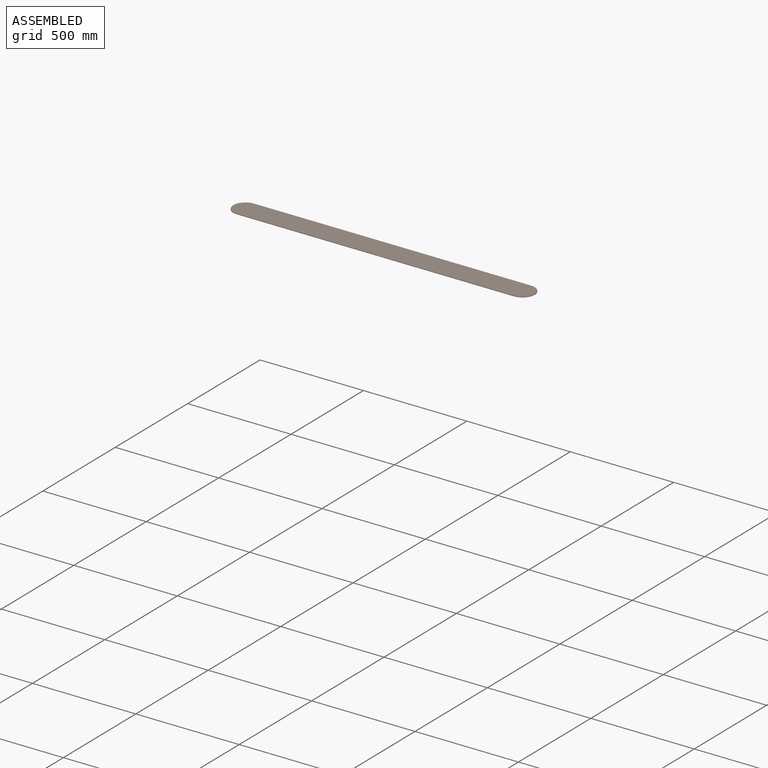
[diagram: assembled view]
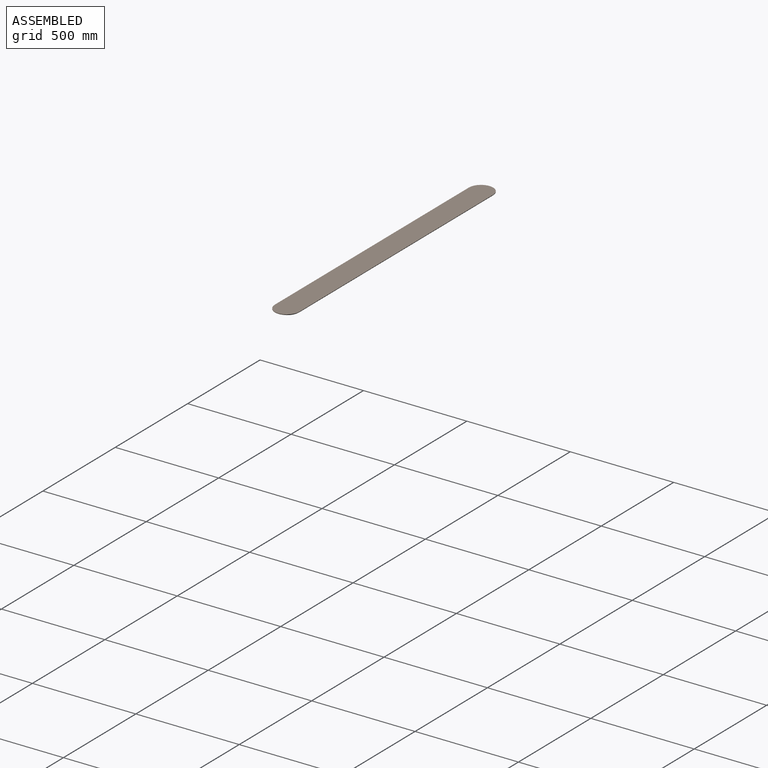
[diagram: assembled view, second angle]
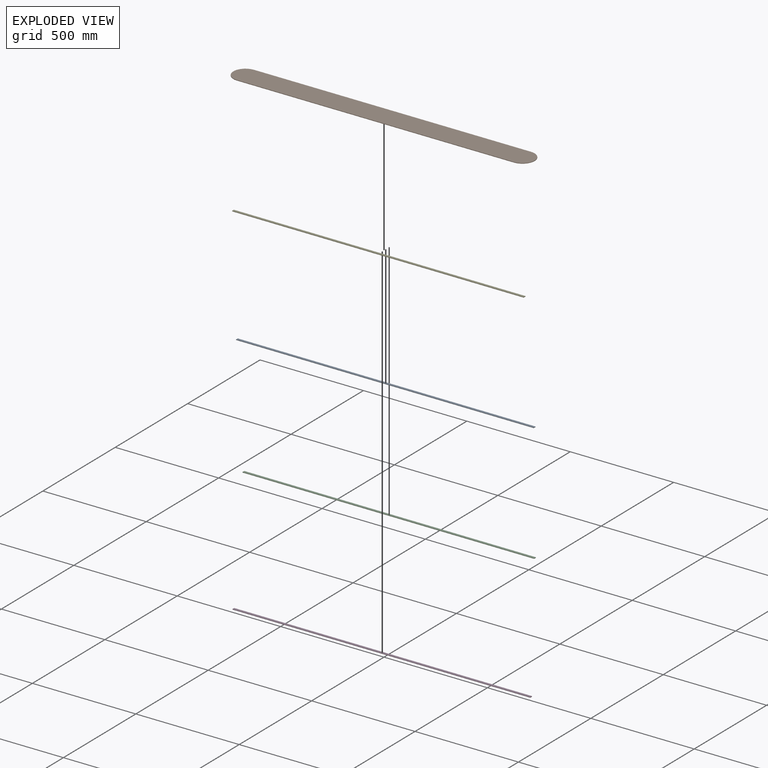
[diagram: exploded view]
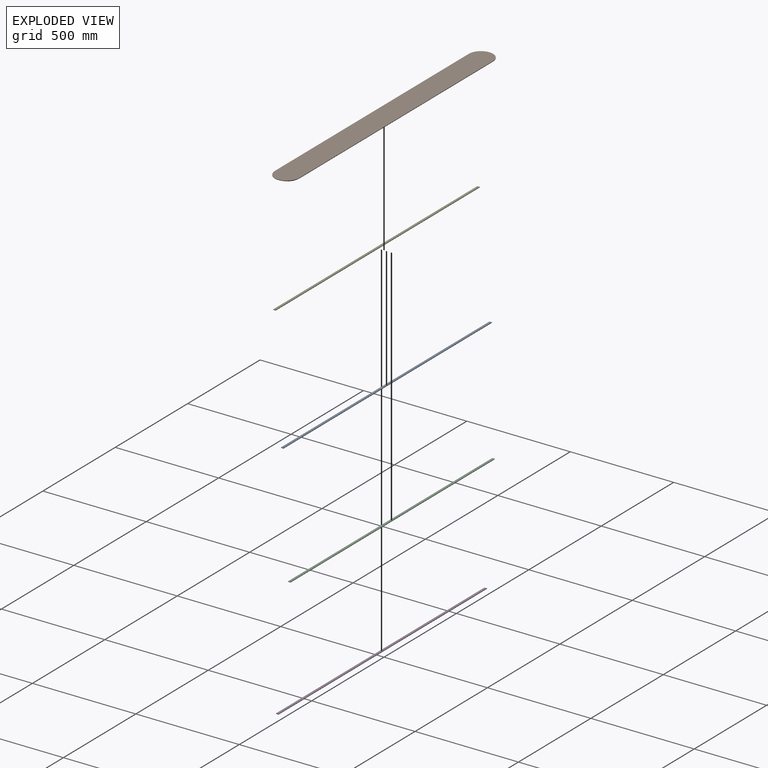
[diagram: exploded view, second angle]
ASSEMBLY  parts=5 mates=4
PART A: 6 faces, bbox 1440x12x2.5 mm
  f0: plane 1440x2.5mm, normal (0,-1,0), area 3600mm2, adj f1,f3,f4,f5
  f1: plane 12x2.5mm, normal (1,0,0), area 30mm2, adj f0,f2,f4,f5
  f2: plane 1440x2.5mm, normal (0,1,0), area 3600mm2, adj f1,f3,f4,f5
  f3: plane 12x2.5mm, normal (-1,0,0), area 30mm2, adj f0,f2,f4,f5
  f4: plane 1440x12mm, normal (0,0,1), area 17280mm2, adj f0,f1,f2,f3
  f5: plane 1440x12mm, normal (0,0,-1), area 17280mm2, adj f0,f1,f2,f3
PART B: 6 faces, bbox 1457.5x117.5x2.5 mm
  f0: plane 1340x2.5mm, normal (0,1,0), area 3350mm2, adj f1,f3,f4,f5
  f1: cylinder r=58.75mm len=117.5mm, axis (0,0,-1), area 461.4mm2, adj f0,f2,f4,f5
  f2: plane 1340x2.5mm, normal (0,-1,0), area 3350mm2, adj f1,f3,f4,f5
  f3: cylinder r=58.75mm len=117.5mm, axis (0,0,-1), area 461.4mm2, adj f0,f2,f4,f5
  f4: plane 1457.5x117.5mm, normal (0,0,1), area 168293.4mm2, adj f0,f1,f2,f3
  f5: plane 1457.5x117.5mm, normal (0,0,-1), area 168293.4mm2, adj f0,f1,f2,f3
PART C: 6 faces, bbox 1410x12x2.5 mm
  f0: plane 1410x2.5mm, normal (0,-1,0), area 3525mm2, adj f1,f3,f4,f5
  f1: plane 12x2.5mm, normal (1,0,0), area 30mm2, adj f0,f2,f4,f5
  f2: plane 1410x2.5mm, normal (0,1,0), area 3525mm2, adj f1,f3,f4,f5
  f3: plane 12x2.5mm, normal (-1,0,0), area 30mm2, adj f0,f2,f4,f5
  f4: plane 1410x12mm, normal (0,0,1), area 16920mm2, adj f0,f1,f2,f3
  f5: plane 1410x12mm, normal (0,0,-1), area 16920mm2, adj f0,f1,f2,f3
PART D: same geometry as A
PART E: same geometry as C
PLACE A t=(0,12,-5)mm
PLACE B t=(0,0,-2.5)mm
PLACE C t=(0,36,-5)mm
PLACE D t=(0,-12,-5)mm
PLACE E t=(0,-36,-5)mm
MATE fastened D.f4 <-> B.f5  axis (0,0,1) through (0,-12,-2.5)mm
MATE fastened A.f4 <-> B.f5  axis (0,0,1) through (0,12,-2.5)mm
MATE fastened E.f4 <-> B.f5  axis (0,0,1) through (0,-36,-2.5)mm
MATE fastened C.f4 <-> B.f5  axis (0,0,1) through (0,36,-2.5)mm
